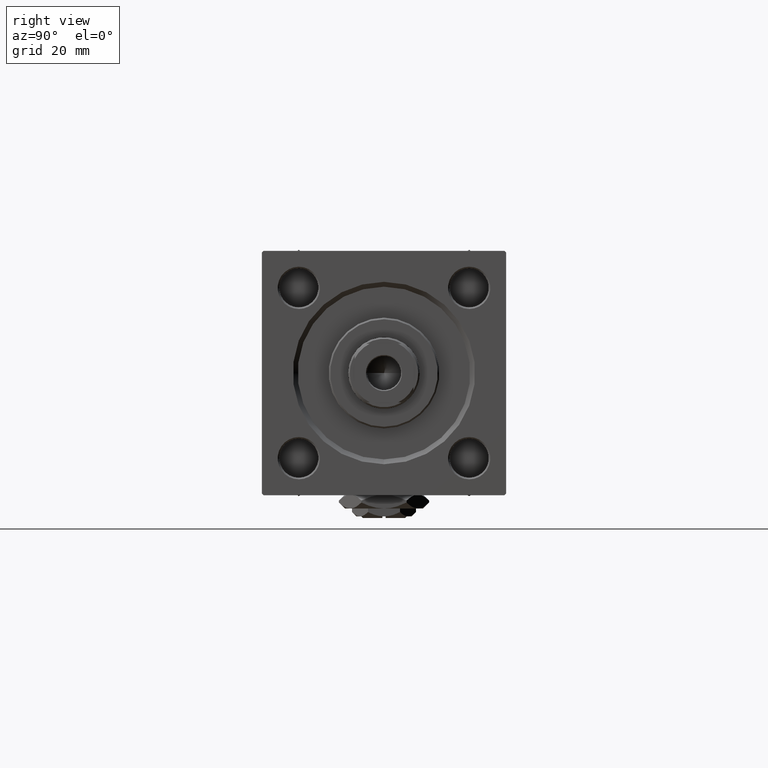
[diagram: clean part render]
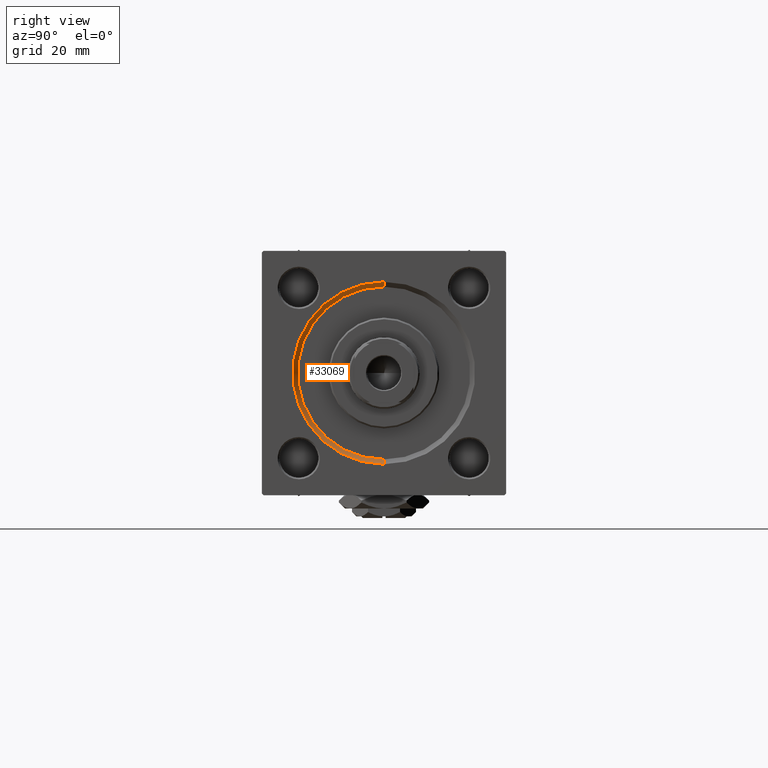
[diagram: same view with one face highlighted and labeled with its STEP entity id]
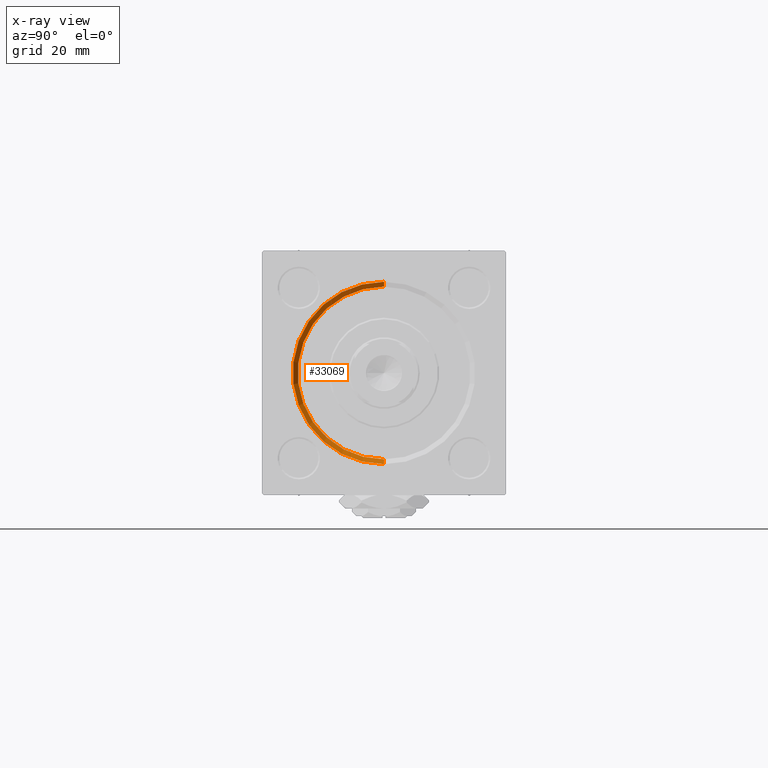
[diagram: x-ray of the same camera — body ghosted, the highlighted face saturated]
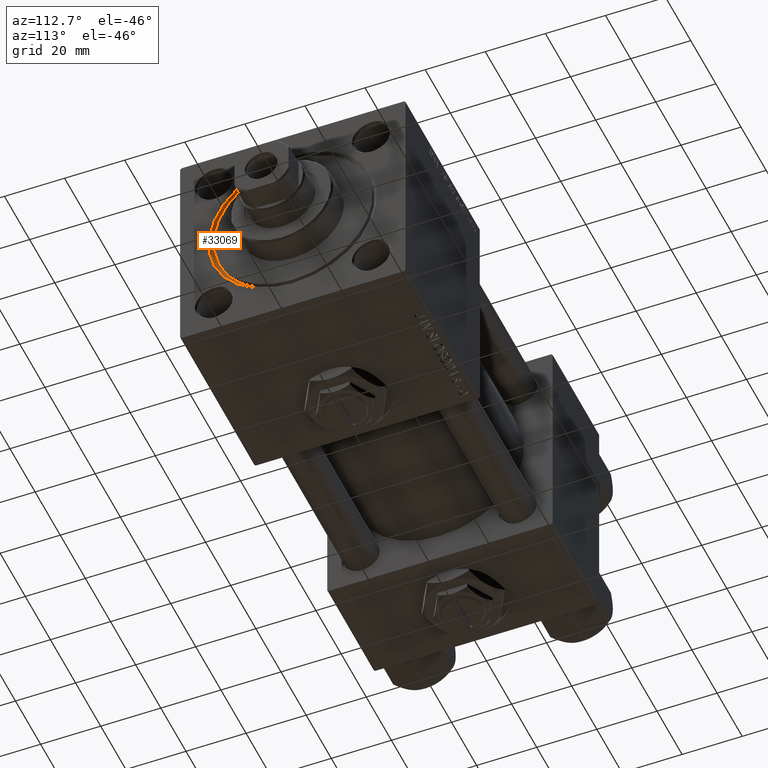
[diagram: same view with one face highlighted and labeled with its STEP entity id]
A machine part, right view. The second image highlights one B-rep face of the part: STEP entity #33069.
The next image is the same camera in x-ray: the body ghosted, the highlighted face saturated — about 0% of this face is hidden behind the body in this view.
A second angle (auxiliary view) of the same face is appended — the face is thin or edge-on in the first view.
In plain terms, the highlighted conical surface has half-angle 45 deg.
Its self-contained STEP definition (entity closure, byte-faithful):
#907 = CARTESIAN_POINT ( 'NONE',  ( 152.5000000000000568, 0.000000000000000000, -26.50000000000000355 ) ) ;
#3906 = DIRECTION ( 'NONE',  ( 0.7071067811865361374, 0.000000000000000000, -0.7071067811865588970 ) ) ;
#4173 = LINE ( 'NONE', #8405, #18483 ) ;
#5520 = DIRECTION ( 'NONE',  ( 1.000000000000000000, 0.000000000000000000, 0.000000000000000000 ) ) ;
#8195 = VERTEX_POINT ( 'NONE', #26389 ) ;
#8405 = CARTESIAN_POINT ( 'NONE',  ( 152.5000000000000568, 0.000000000000000000, -26.50000000000000355 ) ) ;
#9091 = CONICAL_SURFACE ( 'NONE', #11584, 26.50000000000000355, 0.7853981633974644883 ) ;
#9486 = VECTOR ( 'NONE', #28819, 1000.000000000000114 ) ;
#10748 = VERTEX_POINT ( 'NONE', #32853 ) ;
#11584 = AXIS2_PLACEMENT_3D ( 'NONE', #41180, #5520, #50152 ) ;
#11725 = ORIENTED_EDGE ( 'NONE', *, *, #33072, .F. ) ;
#12172 = LINE ( 'NONE', #20901, #9486 ) ;
#12760 = VERTEX_POINT ( 'NONE', #39254 ) ;
#13624 = ORIENTED_EDGE ( 'NONE', *, *, #39410, .F. ) ;
#15781 = CIRCLE ( 'NONE', #45325, 27.99999999999999645 ) ;
#16228 = ORIENTED_EDGE ( 'NONE', *, *, #17504, .T. ) ;
#17504 = EDGE_CURVE ( 'NONE', #8195, #12760, #12172, .T. ) ;
#18132 = DIRECTION ( 'NONE',  ( 0.000000000000000000, 0.000000000000000000, 1.000000000000000000 ) ) ;
#18483 = VECTOR ( 'NONE', #3906, 1000.000000000000114 ) ;
#19007 = AXIS2_PLACEMENT_3D ( 'NONE', #26071, #29246, #18132 ) ;
#20901 = CARTESIAN_POINT ( 'NONE',  ( 152.5000000000000568, 3.245314017740486554E-15, 26.50000000000000355 ) ) ;
#20998 = VERTEX_POINT ( 'NONE', #907 ) ;
#21122 = DIRECTION ( 'NONE',  ( -1.000000000000000000, -0.000000000000000000, 0.000000000000000000 ) ) ;
#26071 = CARTESIAN_POINT ( 'NONE',  ( 152.5000000000000568, 0.000000000000000000, 0.000000000000000000 ) ) ;
#26389 = CARTESIAN_POINT ( 'NONE',  ( 152.5000000000000568, 3.245314017740486554E-15, 26.50000000000000355 ) ) ;
#28819 = DIRECTION ( 'NONE',  ( 0.7071067811865361374, 8.659560562355073374E-17, 0.7071067811865588970 ) ) ;
#29246 = DIRECTION ( 'NONE',  ( 1.000000000000000000, 0.000000000000000000, 0.000000000000000000 ) ) ;
#29993 = CIRCLE ( 'NONE', #19007, 26.50000000000000355 ) ;
#30061 = CARTESIAN_POINT ( 'NONE',  ( 154.0000000000000000, 0.000000000000000000, 0.000000000000000000 ) ) ;
#32853 = CARTESIAN_POINT ( 'NONE',  ( 154.0000000000000000, 0.000000000000000000, -27.99999999999999645 ) ) ;
#33069 = ADVANCED_FACE ( 'NONE', ( #34033 ), #9091, .F. ) ;
#33072 = EDGE_CURVE ( 'NONE', #10748, #12760, #15781, .T. ) ;
#33416 = ORIENTED_EDGE ( 'NONE', *, *, #51640, .F. ) ;
#34033 = FACE_OUTER_BOUND ( 'NONE', #43870, .T. ) ;
#37229 = DIRECTION ( 'NONE',  ( 0.000000000000000000, 0.000000000000000000, 1.000000000000000000 ) ) ;
#39254 = CARTESIAN_POINT ( 'NONE',  ( 154.0000000000000000, 3.429011037612588881E-15, 27.99999999999999645 ) ) ;
#39410 = EDGE_CURVE ( 'NONE', #8195, #20998, #29993, .T. ) ;
#41180 = CARTESIAN_POINT ( 'NONE',  ( 152.5000000000000568, 0.000000000000000000, 0.000000000000000000 ) ) ;
#43870 = EDGE_LOOP ( 'NONE', ( #13624, #16228, #11725, #33416 ) ) ;
#45325 = AXIS2_PLACEMENT_3D ( 'NONE', #30061, #21122, #37229 ) ;
#50152 = DIRECTION ( 'NONE',  ( 0.000000000000000000, 0.000000000000000000, -1.000000000000000000 ) ) ;
#51640 = EDGE_CURVE ( 'NONE', #20998, #10748, #4173, .T. ) ;